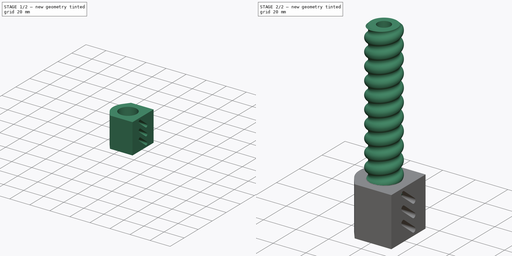
[diagram: build sequence overview — one tinted view per stage of 2, left to right]
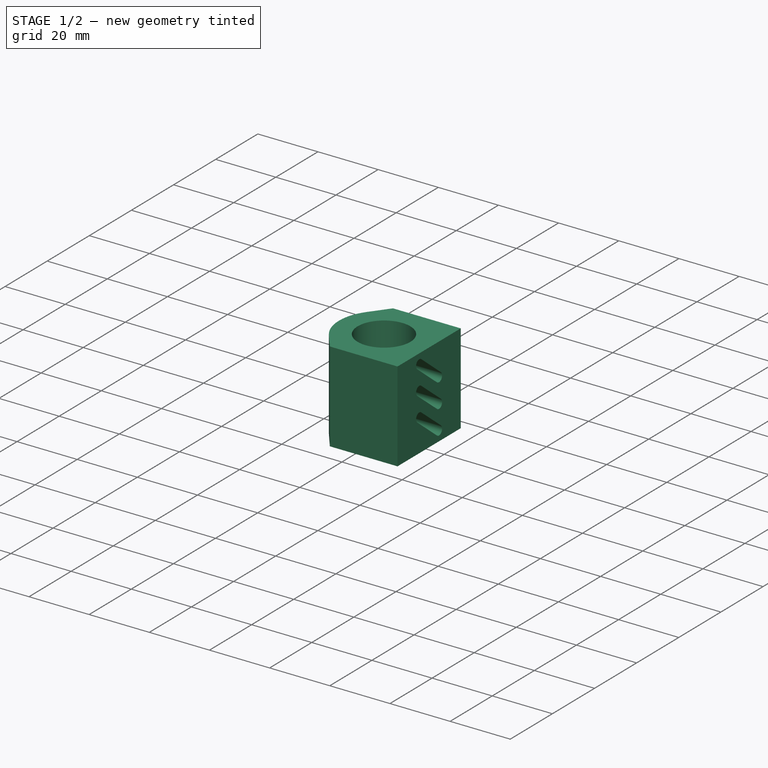
[diagram: stage 1 of 2 — iso view after this stage's code; geometry added in this stage tinted green]
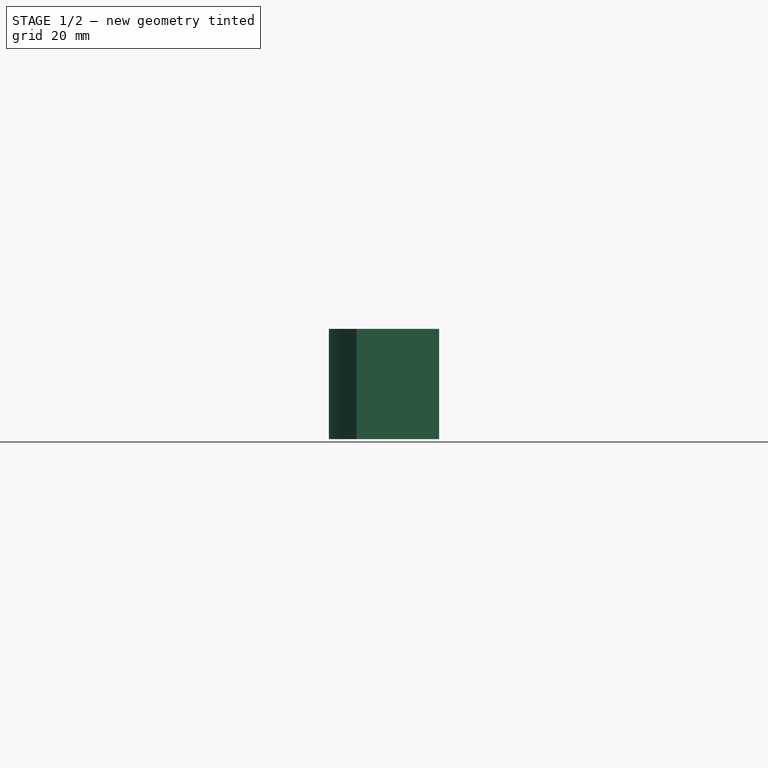
[diagram: stage 1 of 2 — front view after this stage's code; geometry added in this stage tinted green]
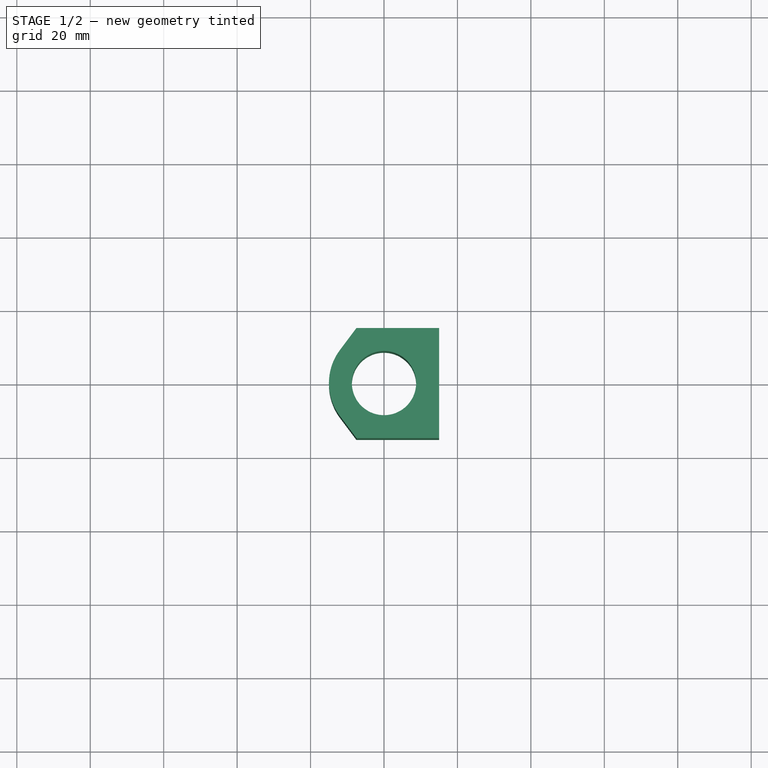
[diagram: stage 1 of 2 — top view after this stage's code; geometry added in this stage tinted green]
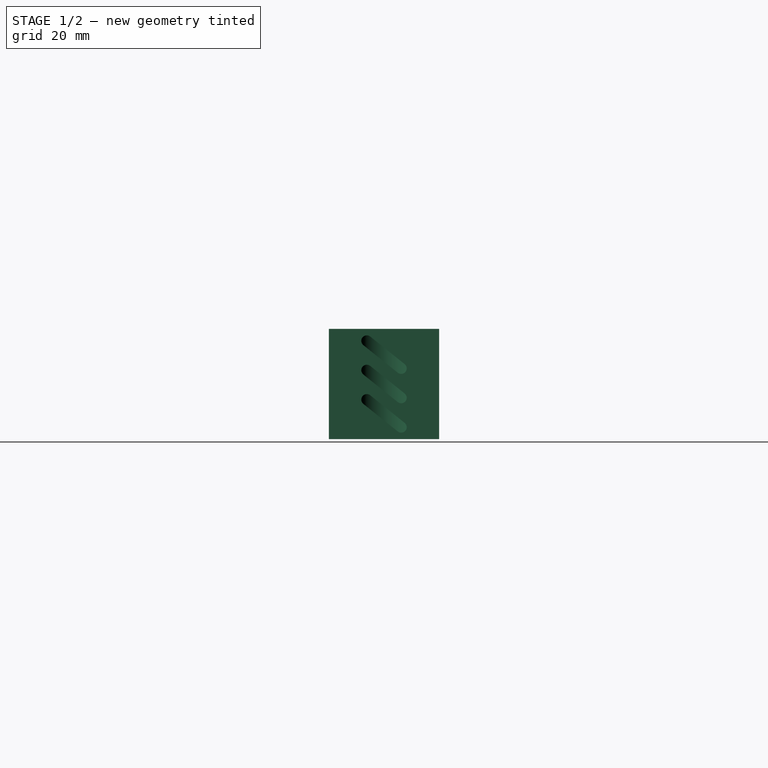
[diagram: stage 1 of 2 — right view after this stage's code; geometry added in this stage tinted green]
FCSTD DOCUMENT  (FreeCAD 0.18R16110 (Git))
Label: BallScrew20x4
License: All rights reserved
LicenseURL: http://en.wikipedia.org/wiki/All_rights_reserved
objects: Sketcher::SketchObject×4, PartDesign::Body×2, Spreadsheet::Sheet×1, PartDesign::Revolution×1, Part::Helix×1, PartDesign::ShapeBinder×1, PartDesign::SubtractivePipe×1, PartDesign::Pad×1, PartDesign::Pocket×1
note: 16 computed .brp shape members not serialized (recipe doc carries the construction recipe); baked Part::Feature solids carry a one-line shape summary decoded from their .brp

FEATURE [PartDesign::Body] Body  label="Shaft"
  Group = -> [Sketch,Revolution,Sketch001,SubtractivePipe,CopyHelix]
  Origin = -> Origin
  Tip = -> SubtractivePipe
FEATURE [Sketcher::SketchObject] Sketch003
  MapMode = 5
  Support = -> [XY_Plane001]
  sketch-geometry (7):
    g0: LineSegment StartX=15 StartY=15 StartZ=0 EndX=15 EndY=-15 EndZ=0
    g1: ArcOfCircle CenterX=0 CenterY=0 CenterZ=0 NormalX=0 NormalY=0 NormalZ=1 AngleXU=0 Radius=15 StartAngle=2.49809 EndAngle=3.78509
    g2: LineSegment StartX=15 StartY=15 StartZ=0 EndX=-7.5 EndY=15 EndZ=0
    g3: LineSegment StartX=-7.5 StartY=15 StartZ=0 EndX=-12 EndY=8.99997 EndZ=0
    g4: LineSegment StartX=-12 StartY=-9 StartZ=0 EndX=-7.5 EndY=-15 EndZ=0
    g5: LineSegment StartX=-7.5 StartY=-15 StartZ=0 EndX=15 EndY=-15 EndZ=0
    g6: Circle CenterX=0 CenterY=0 CenterZ=0 NormalX=0 NormalY=0 NormalZ=1 AngleXU=0 Radius=8.75
  constraints (18):
    c: Coincident(g0,g2)
    c: Coincident(g2,g3)
    c: Coincident(g3,g1)
    c: Tangent(g1,g4) = -1.5708
    c: Coincident(g4,g5)
    c: Coincident(g5,g0)
    c: Tangent(g1,g3)
    c: Equal(g5,g2)
    c: Coincident(g-1,g1)
    c: Radius(g1) = 15
    c: Coincident(g6,g1)
    c: Diameter(g6) = 17.5
    c: Horizontal(g2)
    c: Horizontal(g5)
    c: Symmetric(g0,g0,g-1)
    c: DistanceX(g4,g-1) = 7.5
    c: DistanceX(g-1,g0) = 15  'hight'
    c: DistanceY(g0,g0) = 30
FEATURE [PartDesign::Pad] Pad
  Length = 30
  Length2 = 100
  Midplane = true
  Profile = -> Sketch003
  Type = 0
FEATURE [Sketcher::SketchObject] Sketch004
  AttachmentOffset = pos=(0,0,15) rot=(0,0,1;0rad)
  MapMode = 5
  Placement = pos=(15,-3.3e-15,3.3e-15) rot=(0.57735,0.57735,0.57735;2.0944rad)
  Support = -> [YZ_Plane001]
  expr: AttachmentOffset.Base.z = Sketch003.Constraints.hight
  expr: Constraints[57] = param.pitch
  sketch-geometry (20):
    g0: ArcOfCircle CenterX=4.68284 CenterY=-3.75113 CenterZ=0 NormalX=0 NormalY=0 NormalZ=1 AngleXU=0 Radius=1.5 StartAngle=4.03701 EndAngle=7.17861
    g1: ArcOfCircle CenterX=-4.68284 CenterY=3.75113 CenterZ=0 NormalX=0 NormalY=0 NormalZ=1 AngleXU=0 Radius=1.5 StartAngle=0.895422 EndAngle=4.03702
    g2: LineSegment StartX=3.74506 StartY=-4.92184 StartZ=0 EndX=-5.62062 EndY=2.58042 EndZ=0
    g3: LineSegment StartX=-3.74506 StartY=4.92184 StartZ=0 EndX=5.62062 EndY=-2.58042 EndZ=0
    g4: LineSegment StartX=-5.62063 StartY=10.5804 StartZ=0 EndX=3.74506 EndY=3.07816 EndZ=0
    g5: LineSegment StartX=-3.74506 StartY=12.9218 StartZ=0 EndX=5.62063 EndY=5.41958 EndZ=0
    g6: LineSegment StartX=-3.74506 StartY=-3.07816 StartZ=0 EndX=5.62063 EndY=-10.5804 EndZ=0
    g7: LineSegment StartX=-5.62063 StartY=-5.41958 StartZ=0 EndX=3.74506 EndY=-12.9218 EndZ=0
    g8: LineSegment [constr] StartX=5.85356 StartY=-4.68891 StartZ=0 EndX=-5.85356 EndY=4.68891 EndZ=0
    g9: LineSegment [constr] StartX=-5.85356 StartY=12.6889 StartZ=0 EndX=5.85356 EndY=3.31109 EndZ=0
    g10: LineSegment [constr] StartX=-5.85356 StartY=-3.31109 StartZ=0 EndX=5.85356 EndY=-12.6889 EndZ=0
    g11: ArcOfCircle CenterX=-4.68284 CenterY=11.7511 CenterZ=0 NormalX=0 NormalY=0 NormalZ=1 AngleXU=0 Radius=1.5 StartAngle=0.895423 EndAngle=4.03702
    g12: ArcOfCircle CenterX=4.68284 CenterY=4.24887 CenterZ=0 NormalX=0 NormalY=0 NormalZ=1 AngleXU=0 Radius=1.5 StartAngle=4.03702 EndAngle=7.17861
    g13: ArcOfCircle CenterX=4.68284 CenterY=-11.7511 CenterZ=0 NormalX=0 NormalY=0 NormalZ=1 AngleXU=0 Radius=1.5 StartAngle=4.03702 EndAngle=7.17861
    g14: ArcOfCircle CenterX=-4.68284 CenterY=-4.24887 CenterZ=0 NormalX=0 NormalY=0 NormalZ=1 AngleXU=0 Radius=1.5 StartAngle=0.895423 EndAngle=4.03702
    g15: GeomPoint X=0 Y=8 Z=0
    g16: GeomPoint X=0 Y=0 Z=0
    g17: GeomPoint X=0 Y=-8 Z=0
    g18: LineSegment [constr] StartX=-4.68284 StartY=-4.24887 StartZ=0 EndX=-4.68284 EndY=3.75113 EndZ=0
    g19: LineSegment [constr] StartX=-4.68284 StartY=3.75113 StartZ=0 EndX=-4.68284 EndY=11.7511 EndZ=0
  constraints (60):
    c: Coincident(g2,g0)
    c: Coincident(g2,g1)
    c: Coincident(g3,g1)
    c: Coincident(g3,g0)
    c: PointOnObject(g8,g0)
    c: PointOnObject(g8,g1)
    c: PointOnObject(g11,g9)
    c: Coincident(g11,g4)
    c: Coincident(g11,g5)
    c: PointOnObject(g12,g9)
    c: Coincident(g12,g5)
    c: Coincident(g12,g4)
    c: PointOnObject(g13,g10)
    c: Coincident(g13,g6)
    c: Coincident(g13,g7)
    c: PointOnObject(g14,g10)
    c: Coincident(g14,g6)
    c: Coincident(g14,g7)
    c: PointOnObject(g10,g14)
    c: PointOnObject(g10,g13)
    c: PointOnObject(g9,g11)
    c: PointOnObject(g9,g12)
    c: Tangent(g5,g11)
    c: Tangent(g11,g4)
    c: Tangent(g4,g12)
    c: Tangent(g12,g5)
    c: Tangent(g1,g2)
    c: Tangent(g1,g3)
    c: Tangent(g3,g0)
    c: Tangent(g0,g2)
    c: Tangent(g6,g14)
    c: Tangent(g14,g7)
    c: Tangent(g7,g13)
    c: Tangent(g13,g6)
    c: Equal(g11,g12)
    c: Equal(g12,g0)
    c: Equal(g0,g1)
    c: Equal(g1,g14)
    c: Equal(g14,g13)
    c: PointOnObject(g1,g8)
    c: PointOnObject(g0,g8)
    c: Equal(g9,g8)
    c: Equal(g8,g10)
    c: Symmetric(g14,g13,g17)
    c: Symmetric(g1,g0,g16)
    c: Symmetric(g11,g12,g15)
    c: PointOnObject(g15,g-2)
    c: PointOnObject(g17,g-2)
    c: Coincident(g16,g-1)
    c: Diameter(g1) = 3
    c: Distance(g8) = 15
    c: Parallel(g8,g10)
    c: Parallel(g10,g9)
    c: Coincident(g18,g14)
    c: Coincident(g18,g1)
    c: Coincident(g19,g1)
    c: Coincident(g19,g11)
    c: DistanceY(g18,g18) = 8
    c: Equal(g18,g19)
    c: Angle(g8,g-1) = 0.675373
FEATURE [PartDesign::Pocket] Pocket
  BaseFeature = -> Pad
  Length = 15
  Length2 = 100
  Profile = -> Sketch004
  Type = 0
  expr: Length = Sketch003.Constraints.hight
FEATURE [PartDesign::Body] Body001
  Group = -> [Sketch003,Pad,Sketch004,Pocket]
  Origin = -> Origin001
  Placement = pos=(0,0,16) rot=(0,0,1;0rad)
  Tip = -> Pocket
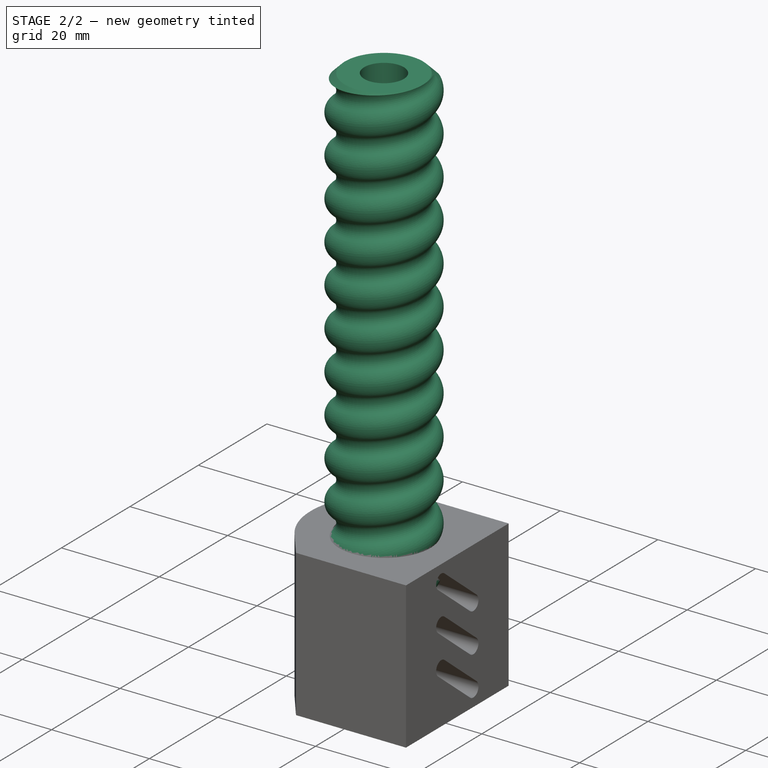
[diagram: stage 2 of 2 — iso view after this stage's code; geometry added in this stage tinted green]
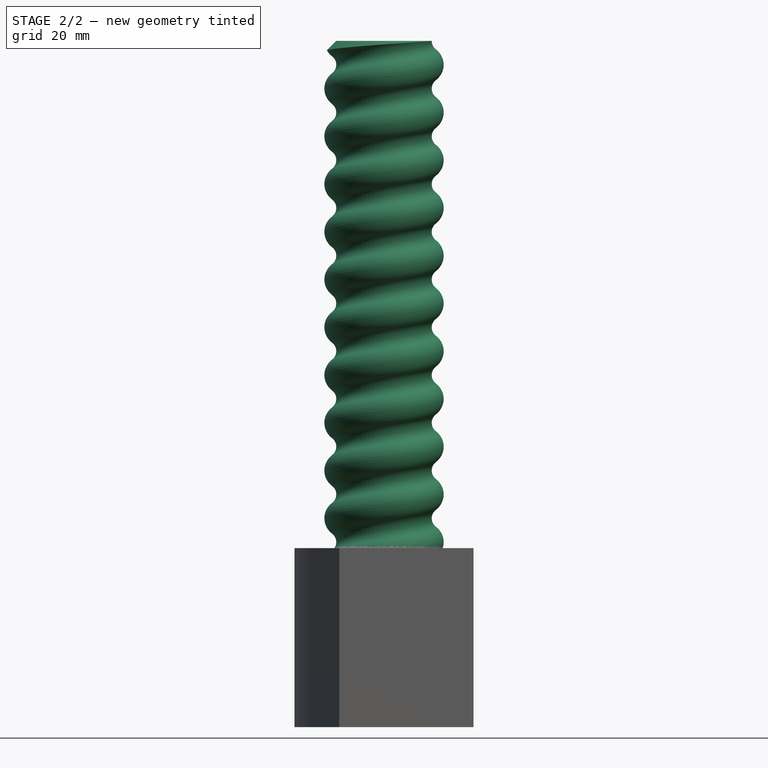
[diagram: stage 2 of 2 — front view after this stage's code; geometry added in this stage tinted green]
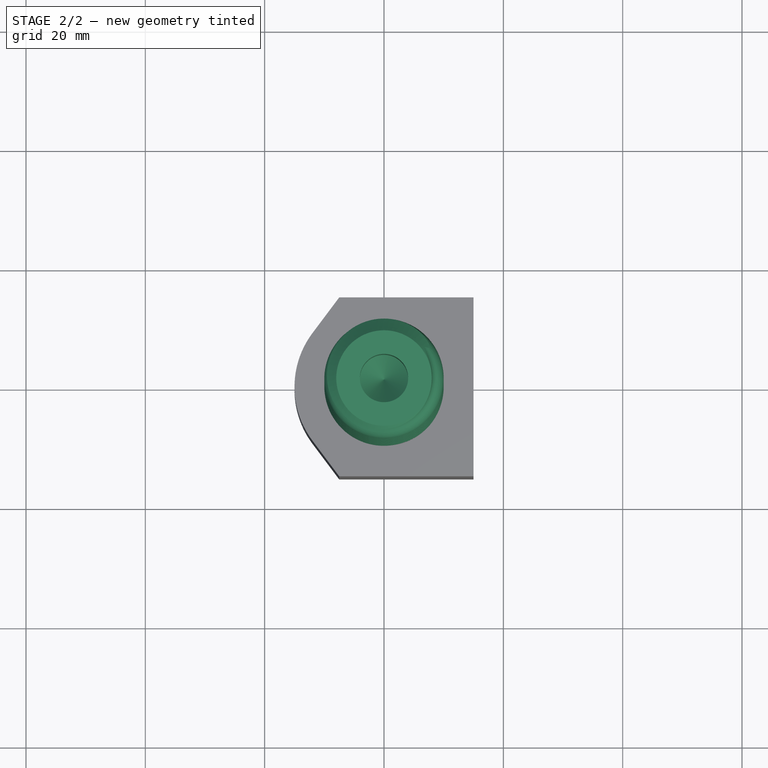
[diagram: stage 2 of 2 — top view after this stage's code; geometry added in this stage tinted green]
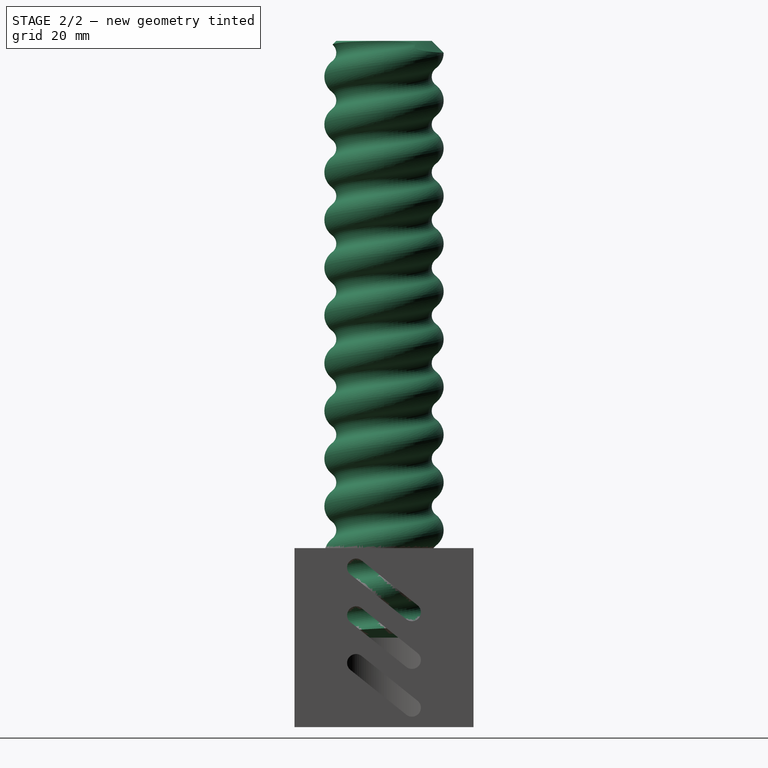
[diagram: stage 2 of 2 — right view after this stage's code; geometry added in this stage tinted green]
FEATURE [Spreadsheet::Sheet] Spreadsheet  label="param"
  cells = A1=Thread-Diameter; B1(thread_dia)=20; C1=thread_dia; A2=Thread-Lenght; B2(thread_len)=100; C2=thread_len; A3=Pitch; B3(pitch)=8; C3=pitch; A4=Ball-Diameter; B4(ball_diam)=4; C4=ball_diam
FEATURE [Sketcher::SketchObject] Sketch
  MapMode = 5
  Placement = pos=(0,0,0) rot=(1,0,0;1.5708rad)
  expr: Constraints[28] = param.thread_len
  expr: Constraints[26] = param.pitch / 4
  expr: Constraints[22] = param.pitch / 4
  expr: Constraints[20] = param.thread_dia / 2
  sketch-geometry (10):
    g0: LineSegment StartX=0 StartY=12.5 StartZ=0 EndX=2.5 EndY=10 EndZ=0
    g1: LineSegment StartX=10 StartY=2 StartZ=0 EndX=10 EndY=98 EndZ=0
    g2: LineSegment StartX=10 StartY=98 StartZ=0 EndX=8 EndY=100 EndZ=0
    g3: LineSegment StartX=0 StartY=85.95 StartZ=0 EndX=0 EndY=12.5 EndZ=0
    g4: LineSegment StartX=2.5 StartY=10 StartZ=0 EndX=2.5 EndY=0 EndZ=0
    g5: LineSegment StartX=8 StartY=0 StartZ=0 EndX=10 EndY=2 EndZ=0
    g6: LineSegment StartX=4.05 StartY=100 StartZ=0 EndX=4.05 EndY=90 EndZ=0
    g7: LineSegment StartX=4.05 StartY=90 StartZ=0 EndX=0 EndY=85.95 EndZ=0
    g8: LineSegment StartX=4.05 StartY=100 StartZ=0 EndX=8 EndY=100 EndZ=0
    g9: LineSegment StartX=2.5 StartY=0 StartZ=0 EndX=8 EndY=0 EndZ=0
  constraints (30):
    c: Vertical(g1)
    c: Coincident(g1,g2)
    c: DistanceX(g0,g0) = 2.5
    c: PointOnObject(g3,g-2)
    c: PointOnObject(g3,g-2)
    c: Coincident(g0,g3)
    c: Coincident(g4,g0)
    c: Vertical(g4)
    c: PointOnObject(g4,g-1)
    c: DistanceY(g4,g4) = 10
    c: Coincident(g5,g1)
    c: Vertical(g6)
    c: Coincident(g7,g6)
    c: Coincident(g7,g3)
    c: Angle(g6,g7) = 2.35619
    c: DistanceX(g-1,g6) = 4.05
    c: DistanceY(g6,g6) = 10
    c: Coincident(g8,g6)
    c: Coincident(g8,g2)
    c: Horizontal(g8)
    c: DistanceX(g-1,g1) = 10
    c: Angle(g2,g1) = 2.35619
    c: DistanceY(g1,g2) = 2
    c: Coincident(g9,g4)
    c: Coincident(g9,g5)
    c: Horizontal(g9)
    c: DistanceY(g5,g1) = 2
    c: Angle(g5,g9) = 2.35619
    c: DistanceY(g5,g2) = 100
    c: Angle(g0,g4) = 2.35619
FEATURE [PartDesign::Revolution] Revolution
  Angle = 360
  Axis = (0,2e-16,1)
  Base = (0,0,0)
  Placement = pos=(0,0,0) rot=(1,0,0;1.5708rad)
  Profile = -> Sketch
  ReferenceAxis = -> Sketch [V_Axis]
  Reversed = true
FEATURE [Part::Helix] Helix
  Angle = 0
  AttacherType = Attacher::AttachEngine3D
  AttachmentOffset = pos=(0,0,-4) rot=(0,0,1;0rad)
  Height = 108
  LocalCoord = 0
  MapMode = 5
  Pitch = 8
  Placement = pos=(0,0,-4) rot=(0,0,1;0rad)
  Radius = 5
  Style = 1
  Support = -> [XY_Plane]
  expr: AttachmentOffset.Base.z = -param.pitch / 2
  expr: Height = param.thread_len + param.pitch
  expr: Pitch = param.pitch
FEATURE [Sketcher::SketchObject] Sketch001
  MapMode = 5
  Placement = pos=(0,0,0) rot=(1,0,0;1.5708rad)
  Support = -> [XZ_Plane]
  expr: Constraints[25] = param.pitch / 2
  expr: Constraints[16] = param.pitch
  expr: Constraints[18] = param.ball_diam / 2
  expr: Constraints[0] = param.thread_dia / 2
  expr: Constraints[1] = param.ball_diam
  sketch-geometry (8):
    g0: Circle [constr] CenterX=10 CenterY=-4 CenterZ=0 NormalX=0 NormalY=0 NormalZ=1 AngleXU=0 Radius=2
    g1: ArcOfCircle CenterX=10 CenterY=-4 CenterZ=0 NormalX=0 NormalY=0 NormalZ=1 AngleXU=0 Radius=2 StartAngle=2.21429 EndAngle=4.06889
    g2: ArcOfCircle CenterX=7 CenterY=-1e-16 CenterZ=0 NormalX=0 NormalY=0 NormalZ=1 AngleXU=0 Radius=3 StartAngle=5.35589 EndAngle=6.28319
    g3: ArcOfCircle CenterX=7 CenterY=-8 CenterZ=0 NormalX=0 NormalY=0 NormalZ=1 AngleXU=0 Radius=3 StartAngle=6e-16 EndAngle=0.927297
    g4: LineSegment StartX=10 StartY=-1e-16 StartZ=0 EndX=12 EndY=-1e-16 EndZ=0
    g5: LineSegment StartX=10 StartY=-8 StartZ=0 EndX=12 EndY=-8 EndZ=0
    g6: LineSegment StartX=12 StartY=-1e-16 StartZ=0 EndX=12 EndY=-8 EndZ=0
    g7: LineSegment [constr] StartX=8 StartY=-4 StartZ=0 EndX=12 EndY=-4 EndZ=0
  constraints (26):
    c: DistanceX(g-1,g0) = 10
    c: Diameter(g0) = 4
    c: Coincident(g1,g0)
    c: PointOnObject(g1,g0)
    c: Coincident(g2,g1)
    c: Coincident(g3,g1)
    c: Coincident(g2,g4)
    c: Horizontal(g4)
    c: Coincident(g5,g3)
    c: Horizontal(g5)
    c: Coincident(g6,g5)
    c: Tangent(g0,g6)
    c: Coincident(g4,g6)
    c: Tangent(g2,g1)
    c: Tangent(g1,g3)
    c: Equal(g4,g5)
    c: DistanceY(g6,g6) = 8
    c: PointOnObject(g2,g4)
    c: DistanceX(g5,g5) = 2
    c: PointOnObject(g3,g5)
    c: PointOnObject(g7,g1)
    c: PointOnObject(g7,g6)
    c: PointOnObject(g1,g7)
    c: Horizontal(g7)
    c: Symmetric(g5,g4,g7)
    c: DistanceY(g1,g-1) = 4
FEATURE [PartDesign::ShapeBinder] CopyHelix
  Placement = pos=(0,0,-4) rot=(0,0,1;0rad)
  TraceSupport = false
FEATURE [PartDesign::SubtractivePipe] SubtractivePipe
  AuxilleryCurvelinear = true
  AuxillerySpineTangent = false
  BaseFeature = -> Revolution
  Binormal = (0,0,0)
  Mode = 2
  Placement = pos=(0,0,0) rot=(1,0,0;1.5708rad)
  Profile = -> Sketch001
  Spine = -> CopyHelix
  SpineTangent = false
  Transformation = 0
  Transition = 0
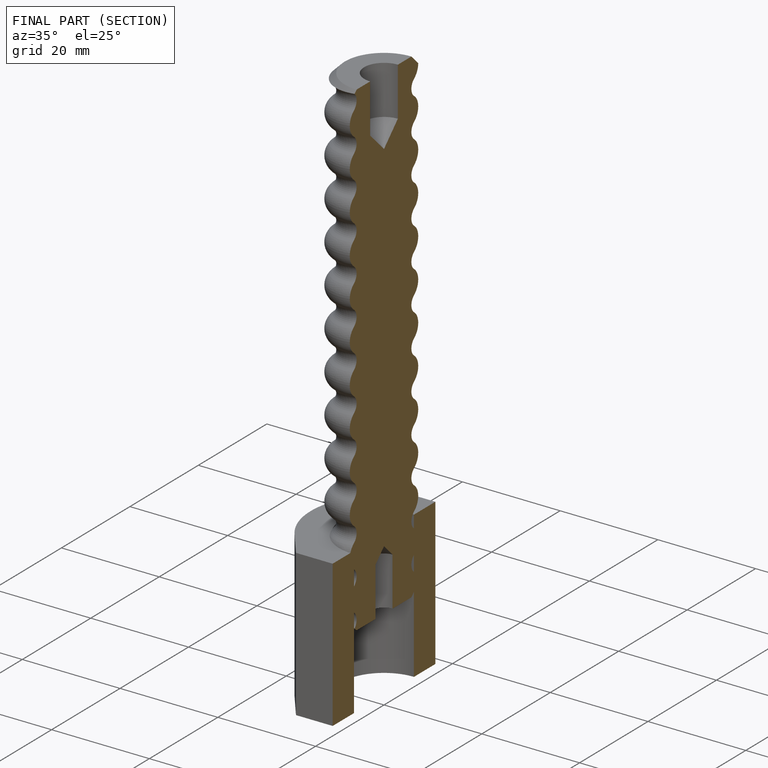
[diagram: finished part — half-section view (interior)]
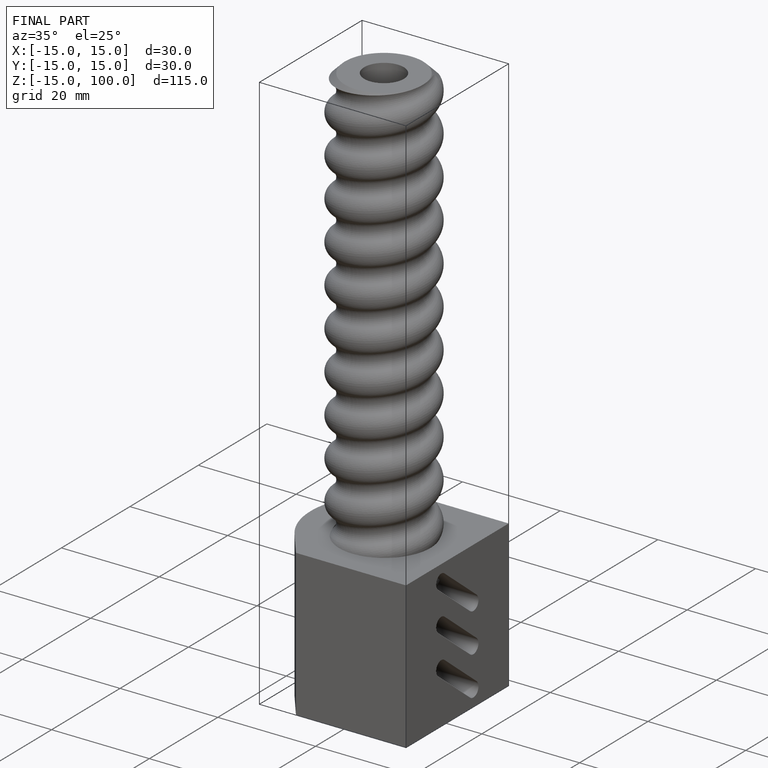
[diagram: finished part — iso view with bounding-box wireframe]
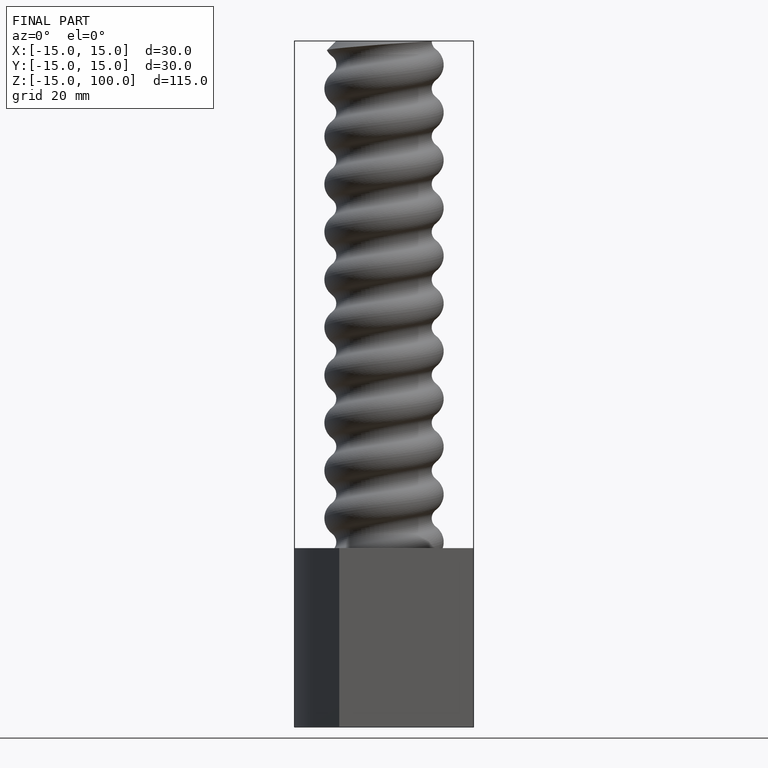
[diagram: finished part — front view with bounding-box wireframe]
